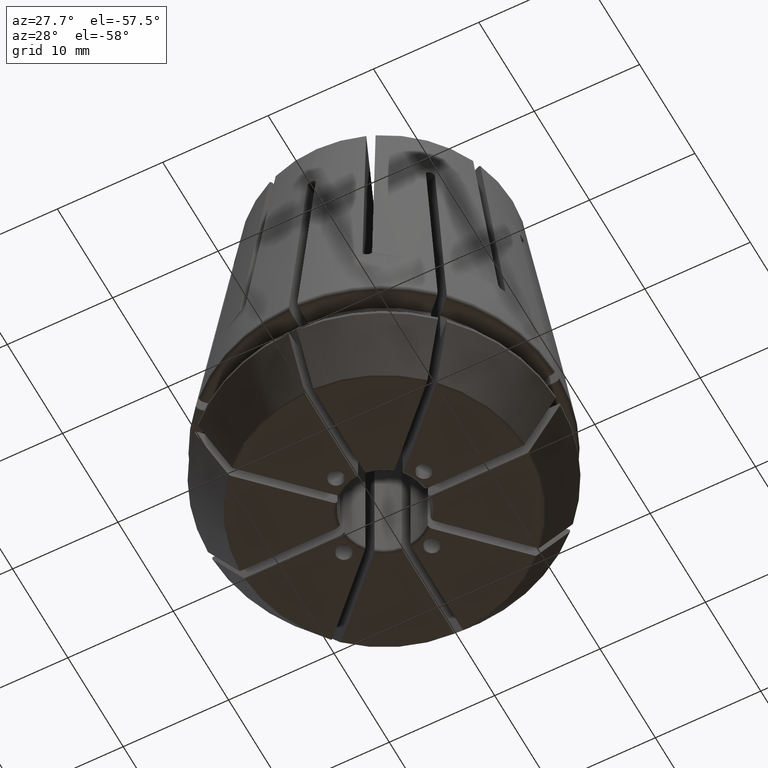
[diagram: clean part render]
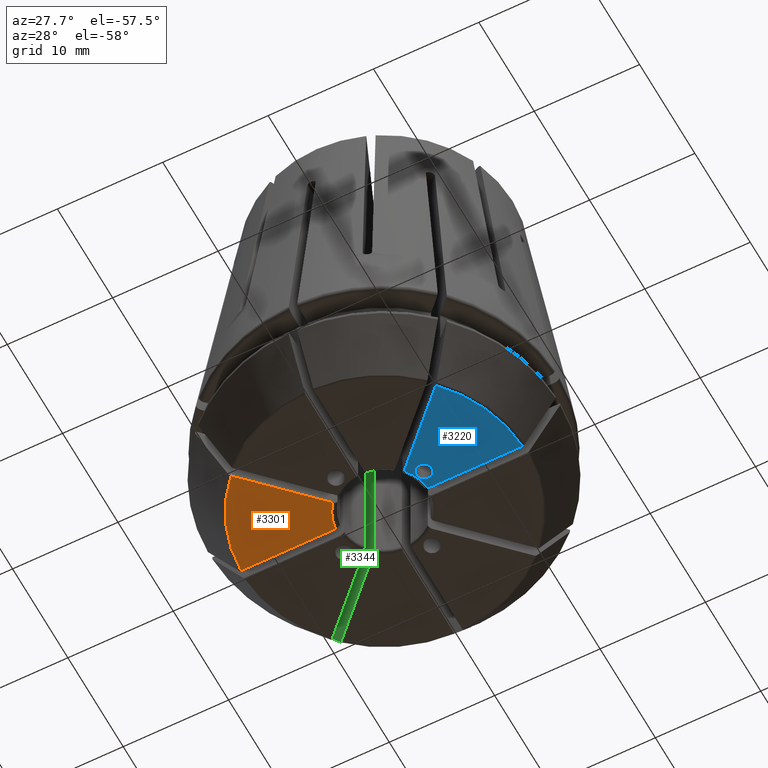
[diagram: same view with three faces highlighted in distinct colors, each labeled with its STEP entity id]
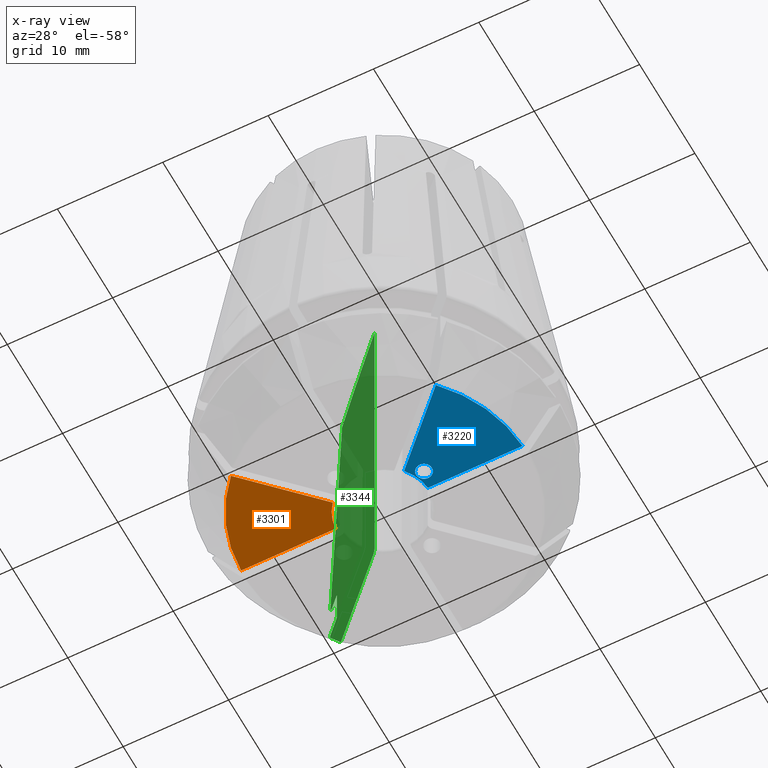
[diagram: x-ray of the same camera — body ghosted, the three highlighted faces saturated]
A machine part, auxiliary view with three faces highlighted in distinct colors.
The next image is the same camera in x-ray (body ghosted, the three faces saturated) — at least one of them is partly hidden behind the body in this view.
Their STEP definitions:

[orange] entity #3301 — the highlighted planar face has unit normal (0, 0, -1).
#47=PLANE('',#3617);
#196=LINE('',#6006,#340);
#197=LINE('',#6011,#341);
#340=VECTOR('',#4315,1000.);
#341=VECTOR('',#4318,1000.);
#1145=ORIENTED_EDGE('',*,*,#2101,.F.);
#1146=ORIENTED_EDGE('',*,*,#2102,.T.);
#1147=ORIENTED_EDGE('',*,*,#2103,.T.);
#1148=ORIENTED_EDGE('',*,*,#2104,.T.);
#2101=EDGE_CURVE('',#2525,#2526,#196,.T.);
#2102=EDGE_CURVE('',#2525,#2527,#2703,.T.);
#2103=EDGE_CURVE('',#2527,#2528,#197,.T.);
#2104=EDGE_CURVE('',#2528,#2526,#2704,.F.);
#2525=VERTEX_POINT('',#6007);
#2526=VERTEX_POINT('',#6008);
#2527=VERTEX_POINT('',#6010);
#2528=VERTEX_POINT('',#6012);
#2703=CIRCLE('',#3618,13.3552359521597);
#2704=CIRCLE('',#3619,4.4);
#2862=EDGE_LOOP('',(#1145,#1146,#1147,#1148));
#3050=FACE_BOUND('',#2862,.T.);
#3301=ADVANCED_FACE('',(#3050),#47,.T.);
#3617=AXIS2_PLACEMENT_3D('',#6005,#4313,#4314);
#3618=AXIS2_PLACEMENT_3D('',#6009,#4316,#4317);
#3619=AXIS2_PLACEMENT_3D('',#6013,#4319,#4320);
#4313=DIRECTION('',(0.,0.,-1.));
#4314=DIRECTION('',(-1.,0.,0.));
#4315=DIRECTION('',(0.707106781186547,0.707106781186548,0.));
#4316=DIRECTION('',(0.,0.,-1.));
#4317=DIRECTION('',(-1.,0.,0.));
#4318=DIRECTION('',(1.,0.,0.));
#4319=DIRECTION('',(0.,0.,-1.));
#4320=DIRECTION('',(-1.,0.,0.));
#6005=CARTESIAN_POINT('',(0.,0.,-9.1));
#6006=CARTESIAN_POINT('',(-0.282842712474617,0.282842712474617,-9.1));
#6007=CARTESIAN_POINT('',(-9.72218398551528,-9.15649856056605,-9.1));
#6008=CARTESIAN_POINT('',(-3.38122938944055,-2.81554396449132,-9.1));
#6009=CARTESIAN_POINT('',(0.,0.,-9.1));
#6010=CARTESIAN_POINT('',(-13.3492444482024,-0.4,-9.1));
#6011=CARTESIAN_POINT('',(0.,-0.4,-9.1));
#6012=CARTESIAN_POINT('',(-4.38178046004133,-0.4,-9.1));
#6013=CARTESIAN_POINT('',(0.,0.,-9.1));

[blue] entity #3220 — the highlighted planar face has unit normal (0, 0, -1).
#24=PLANE('',#3463);
#126=LINE('',#5272,#270);
#127=LINE('',#5276,#271);
#270=VECTOR('',#3941,1000.);
#271=VECTOR('',#3944,1000.);
#818=ORIENTED_EDGE('',*,*,#1866,.T.);
#819=ORIENTED_EDGE('',*,*,#1867,.T.);
#820=ORIENTED_EDGE('',*,*,#1868,.T.);
#821=ORIENTED_EDGE('',*,*,#1869,.T.);
#822=ORIENTED_EDGE('',*,*,#1870,.T.);
#1866=EDGE_CURVE('',#2382,#2382,#2630,.T.);
#1867=EDGE_CURVE('',#2383,#2384,#2631,.T.);
#1868=EDGE_CURVE('',#2384,#2385,#126,.T.);
#1869=EDGE_CURVE('',#2385,#2386,#2632,.F.);
#1870=EDGE_CURVE('',#2386,#2383,#127,.T.);
#2382=VERTEX_POINT('',#5268);
#2383=VERTEX_POINT('',#5270);
#2384=VERTEX_POINT('',#5271);
#2385=VERTEX_POINT('',#5273);
#2386=VERTEX_POINT('',#5275);
#2630=CIRCLE('',#3464,0.75);
#2631=CIRCLE('',#3465,13.3552359521597);
#2632=CIRCLE('',#3466,4.4);
#2778=EDGE_LOOP('',(#818));
#2779=EDGE_LOOP('',(#819,#820,#821,#822));
#2966=FACE_BOUND('',#2778,.T.);
#2967=FACE_BOUND('',#2779,.T.);
#3220=ADVANCED_FACE('',(#2966,#2967),#24,.T.);
#3463=AXIS2_PLACEMENT_3D('',#5266,#3935,#3936);
#3464=AXIS2_PLACEMENT_3D('',#5267,#3937,#3938);
#3465=AXIS2_PLACEMENT_3D('',#5269,#3939,#3940);
#3466=AXIS2_PLACEMENT_3D('',#5274,#3942,#3943);
#3935=DIRECTION('',(0.,0.,-1.));
#3936=DIRECTION('',(-1.,0.,0.));
#3937=DIRECTION('',(0.,0.,1.));
#3938=DIRECTION('',(-1.,0.,0.));
#3939=DIRECTION('',(0.,0.,-1.));
#3940=DIRECTION('',(-1.,0.,0.));
#3941=DIRECTION('',(-0.707106781186548,0.707106781186547,0.));
#3942=DIRECTION('',(0.,0.,-1.));
#3943=DIRECTION('',(-1.,0.,0.));
#3944=DIRECTION('',(1.,0.,0.));
#5266=CARTESIAN_POINT('',(0.,0.,-9.1));
#5267=CARTESIAN_POINT('',(4.85036754568425,-2.00908801991672,-9.1));
#5268=CARTESIAN_POINT('',(4.10036754568425,-2.00908801991672,-9.1));
#5269=CARTESIAN_POINT('',(0.,0.,-9.1));
#5270=CARTESIAN_POINT('',(13.3492444482022,-0.4,-9.1));
#5271=CARTESIAN_POINT('',(9.72218398551529,-9.15649856056604,-9.1));
#5272=CARTESIAN_POINT('',(0.282842712474623,0.282842712474623,-9.1));
#5273=CARTESIAN_POINT('',(3.38122938944056,-2.81554396449131,-9.1));
#5274=CARTESIAN_POINT('',(0.,0.,-9.1));
#5275=CARTESIAN_POINT('',(4.38178046004133,-0.4,-9.1));
#5276=CARTESIAN_POINT('',(0.,-0.4,-9.1));

[green] entity #3344 — the highlighted planar face has unit normal (-0.7071, -0.7071, 0).
#76=PLANE('',#3699);
#85=LINE('',#4969,#229);
#130=LINE('',#5309,#274);
#132=LINE('',#5333,#276);
#134=LINE('',#5342,#278);
#136=LINE('',#5372,#280);
#138=LINE('',#5406,#282);
#229=VECTOR('',#3814,1000.);
#274=VECTOR('',#3957,1000.);
#276=VECTOR('',#3971,1000.);
#278=VECTOR('',#3979,1000.);
#280=VECTOR('',#3993,1000.);
#282=VECTOR('',#4005,1000.);
#438=B_SPLINE_CURVE_WITH_KNOTS('',3,(#4764,#4765,#4766,#4767),
 .UNSPECIFIED.,.F.,.F.,(4,4),(2.01966674781158E-7,0.023702835843683),
 .UNSPECIFIED.);
#506=B_SPLINE_CURVE_WITH_KNOTS('',3,(#5321,#5322,#5323,#5324),
 .UNSPECIFIED.,.F.,.F.,(4,4),(2.30965204193474E-7,0.00585726977104297),
 .UNSPECIFIED.);
#508=B_SPLINE_CURVE_WITH_KNOTS('',3,(#5351,#5352,#5353,#5354),
 .UNSPECIFIED.,.F.,.F.,(4,4),(0.000312972725179242,0.000625477797515871),
 .UNSPECIFIED.);
#510=B_SPLINE_CURVE_WITH_KNOTS('',3,(#5360,#5361,#5362,#5363),
 .UNSPECIFIED.,.F.,.F.,(4,4),(1.97177659008587E-7,0.000312974042638449),
 .UNSPECIFIED.);
#512=B_SPLINE_CURVE_WITH_KNOTS('',3,(#5378,#5379,#5380,#5381),
 .UNSPECIFIED.,.F.,.F.,(4,4),(0.00076627681195305,0.00153231860263815),
 .UNSPECIFIED.);
#514=B_SPLINE_CURVE_WITH_KNOTS('',3,(#5388,#5389,#5390,#5391),
 .UNSPECIFIED.,.F.,.F.,(4,4),(0.000260812646096966,0.000521355154502994),
 .UNSPECIFIED.);
#516=B_SPLINE_CURVE_WITH_KNOTS('',3,(#5397,#5398,#5399,#5400),
 .UNSPECIFIED.,.F.,.F.,(4,4),(1.97163553366719E-7,0.000627044258971494),
 .UNSPECIFIED.);
#1478=ORIENTED_EDGE('',*,*,#1768,.T.);
#1479=ORIENTED_EDGE('',*,*,#2190,.T.);
#1480=ORIENTED_EDGE('',*,*,#1722,.F.);
#1481=ORIENTED_EDGE('',*,*,#1903,.F.);
#1482=ORIENTED_EDGE('',*,*,#1887,.T.);
#1483=ORIENTED_EDGE('',*,*,#1895,.T.);
#1484=ORIENTED_EDGE('',*,*,#1891,.T.);
#1485=ORIENTED_EDGE('',*,*,#1897,.T.);
#1486=ORIENTED_EDGE('',*,*,#1879,.T.);
#1487=ORIENTED_EDGE('',*,*,#1909,.F.);
#1488=ORIENTED_EDGE('',*,*,#1884,.F.);
#1489=ORIENTED_EDGE('',*,*,#1905,.F.);
#1490=ORIENTED_EDGE('',*,*,#1900,.F.);
#1491=ORIENTED_EDGE('',*,*,#1907,.F.);
#1722=EDGE_CURVE('',#2254,#2255,#438,.T.);
#1768=EDGE_CURVE('',#2297,#2296,#85,.T.);
#1879=EDGE_CURVE('',#2387,#2388,#130,.T.);
#1884=EDGE_CURVE('',#2392,#2393,#506,.T.);
#1887=EDGE_CURVE('',#2395,#2396,#132,.T.);
#1891=EDGE_CURVE('',#2399,#2400,#134,.F.);
#1895=EDGE_CURVE('',#2396,#2399,#508,.T.);
#1897=EDGE_CURVE('',#2400,#2387,#510,.T.);
#1900=EDGE_CURVE('',#2404,#2405,#136,.T.);
#1903=EDGE_CURVE('',#2395,#2254,#512,.T.);
#1905=EDGE_CURVE('',#2405,#2392,#514,.T.);
#1907=EDGE_CURVE('',#2297,#2404,#516,.T.);
#1909=EDGE_CURVE('',#2393,#2388,#138,.T.);
#2190=EDGE_CURVE('',#2296,#2255,#2742,.T.);
#2254=VERTEX_POINT('',#4763);
#2255=VERTEX_POINT('',#4768);
#2296=VERTEX_POINT('',#4968);
#2297=VERTEX_POINT('',#4970);
#2387=VERTEX_POINT('',#5310);
#2388=VERTEX_POINT('',#5311);
#2392=VERTEX_POINT('',#5320);
#2393=VERTEX_POINT('',#5325);
#2395=VERTEX_POINT('',#5334);
#2396=VERTEX_POINT('',#5335);
#2399=VERTEX_POINT('',#5343);
#2400=VERTEX_POINT('',#5344);
#2404=VERTEX_POINT('',#5371);
#2405=VERTEX_POINT('',#5373);
#2742=CIRCLE('',#3700,74.6);
#2906=EDGE_LOOP('',(#1478,#1479,#1480,#1481,#1482,#1483,#1484,#1485,#1486,
#1487,#1488,#1489,#1490,#1491));
#3094=FACE_BOUND('',#2906,.T.);
#3344=ADVANCED_FACE('',(#3094),#76,.T.);
#3699=AXIS2_PLACEMENT_3D('',#6260,#4501,#4502);
#3700=AXIS2_PLACEMENT_3D('',#6261,#4503,#4504);
#3814=DIRECTION('',(0.,0.,1.));
#3957=DIRECTION('',(-0.707106781186548,0.707106781186547,0.));
#3971=DIRECTION('',(0.707106781186548,-0.707106781186547,0.));
#3979=DIRECTION('',(0.,0.,1.));
#3993=DIRECTION('',(-0.707106781186548,0.707106781186547,0.));
#4005=DIRECTION('',(0.,0.,1.));
#4501=DIRECTION('',(-0.707106781186547,-0.707106781186548,0.));
#4502=DIRECTION('',(-0.707106781186548,0.707106781186547,0.));
#4503=DIRECTION('',(-0.707106781186547,-0.707106781186548,0.));
#4504=DIRECTION('',(-0.707106781186548,0.707106781186547,0.));
#4763=CARTESIAN_POINT('',(-11.3300316190066,11.8957170439559,0.512627895432021));
#4764=CARTESIAN_POINT('',(-11.3300316190066,11.8957170439559,0.512627895432022));
#4765=CARTESIAN_POINT('',(-10.5522781783552,11.1179636033044,8.33657010520839));
#4766=CARTESIAN_POINT('',(-9.77448218602019,10.3401676109694,16.1605038544432));
#4767=CARTESIAN_POINT('',(-8.99660075872334,9.56228618367258,23.984420616664));
#4768=CARTESIAN_POINT('',(-8.99660075872334,9.56228618367258,23.984420616664));
#4968=CARTESIAN_POINT('',(-2.53140674341943,3.09709216836868,25.041513122087));
#4969=CARTESIAN_POINT('',(-2.53140674341943,3.09709216836868,60.));
#4970=CARTESIAN_POINT('',(-2.53140674341943,3.09709216836868,-8.7));
#5309=CARTESIAN_POINT('',(8.5673726586367,-8.00168723368745,-3.6));
#5310=CARTESIAN_POINT('',(-10.178514752023,10.7442001769722,-3.6));
#5311=CARTESIAN_POINT('',(-11.3809902767275,11.9466757016768,-3.60000000000001));
#5320=CARTESIAN_POINT('',(-9.30965928496877,9.87534470991801,-8.97499999999999));
#5321=CARTESIAN_POINT('',(-9.30965928496877,9.87534470991801,-8.97499999999999));
#5322=CARTESIAN_POINT('',(-10.0001428876434,10.5658283125926,-7.28440225195461));
#5323=CARTESIAN_POINT('',(-10.6905794601627,11.2562648851119,-5.59376609022241));
#5324=CARTESIAN_POINT('',(-11.3809902767275,11.9466757016768,-3.90310889132457));
#5325=CARTESIAN_POINT('',(-11.3809902767275,11.9466757016768,-3.90310889132457));
#5333=CARTESIAN_POINT('',(7.58284271247462,-7.01715728752538,1.85288457211878E-19));
#5334=CARTESIAN_POINT('',(-11.0148341951006,11.5805196200498,0.));
#5335=CARTESIAN_POINT('',(-10.1785147520228,10.744200176972,2.38601092100801E-12));
#5342=CARTESIAN_POINT('',(-10.0370410078005,10.6027264327498,60.));
#5343=CARTESIAN_POINT('',(-10.0370410078005,10.6027264327498,-0.199999999999999));
#5344=CARTESIAN_POINT('',(-10.0370410078005,10.6027264327498,-3.4));
#5351=CARTESIAN_POINT('',(-10.1785147520227,10.744200176972,6.11011817694047E-15));
#5352=CARTESIAN_POINT('',(-10.1047495826001,10.6704350075493,-2.04387653293755E-13));
#5353=CARTESIAN_POINT('',(-10.0370410078,10.6027264327492,-9.43372350242204E-02));
#5354=CARTESIAN_POINT('',(-10.0370410078,10.6027264327492,-0.199999999999956));
#5360=CARTESIAN_POINT('',(-10.0370410078005,10.6027264327498,-3.4));
#5361=CARTESIAN_POINT('',(-10.0370410078005,10.6027264327498,-3.50574233142322));
#5362=CARTESIAN_POINT('',(-10.1046854342319,10.6703708591811,-3.6));
#5363=CARTESIAN_POINT('',(-10.178514752023,10.7442001769722,-3.60000000000001));
#5371=CARTESIAN_POINT('',(-2.81554396449131,3.38122938944056,-9.1));
#5372=CARTESIAN_POINT('',(0.282842712474623,0.282842712474623,-9.1));
#5373=CARTESIAN_POINT('',(-9.15649856056604,9.72218398551529,-9.1));
#5378=CARTESIAN_POINT('',(-11.0148341951006,11.5805196200498,-2.01153458243218E-16));
#5379=CARTESIAN_POINT('',(-11.1972870238209,11.7629724487701,1.90888124335368E-15));
#5380=CARTESIAN_POINT('',(-11.3555293630787,11.9212147880279,0.256129028731963));
#5381=CARTESIAN_POINT('',(-11.3300316190066,11.8957170439559,0.512627895432023));
#5388=CARTESIAN_POINT('',(-9.15649856056604,9.72218398551529,-9.1));
#5389=CARTESIAN_POINT('',(-9.21845346134339,9.78413888629263,-9.1));
#5390=CARTESIAN_POINT('',(-9.27850267630111,9.84418810125035,-9.05128463912317));
#5391=CARTESIAN_POINT('',(-9.30965928496887,9.87534470991811,-8.97500000000008));
#5397=CARTESIAN_POINT('',(-2.53140674341944,3.09709216836868,-8.7));
#5398=CARTESIAN_POINT('',(-2.53140674341944,3.09709216836868,-8.91194597527203));
#5399=CARTESIAN_POINT('',(-2.66756431760862,3.23324974255787,-9.10000000000001));
#5400=CARTESIAN_POINT('',(-2.81554396449131,3.38122938944056,-9.10000000000001));
#5406=CARTESIAN_POINT('',(-11.3809902767275,11.9466757016768,60.));
#6260=CARTESIAN_POINT('',(0.282842712474627,0.282842712474619,-49.4522450056917));
#6261=CARTESIAN_POINT('',(0.282842712474621,0.282842712474625,-49.4522450056917));